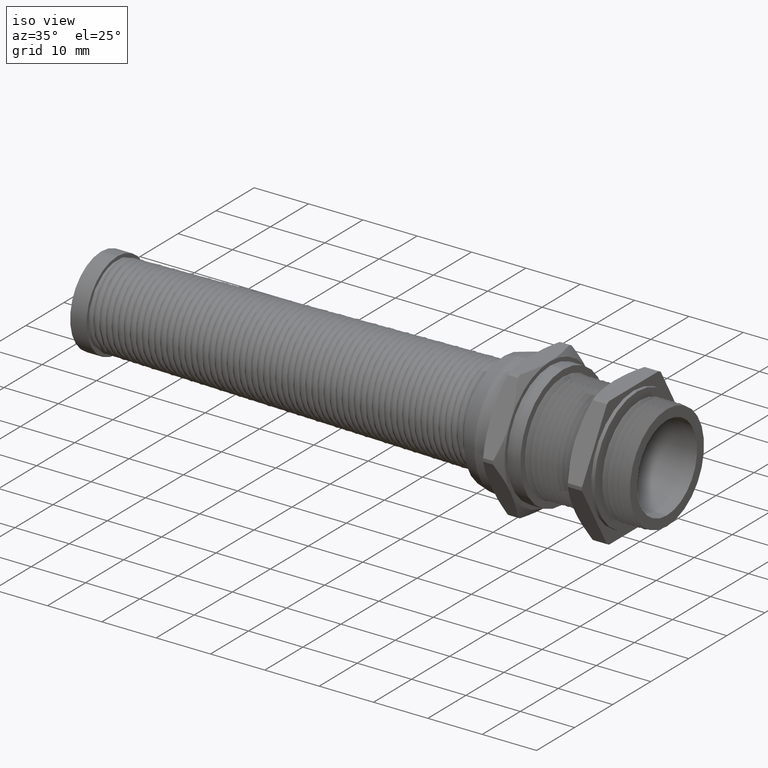
[diagram: clean part render]
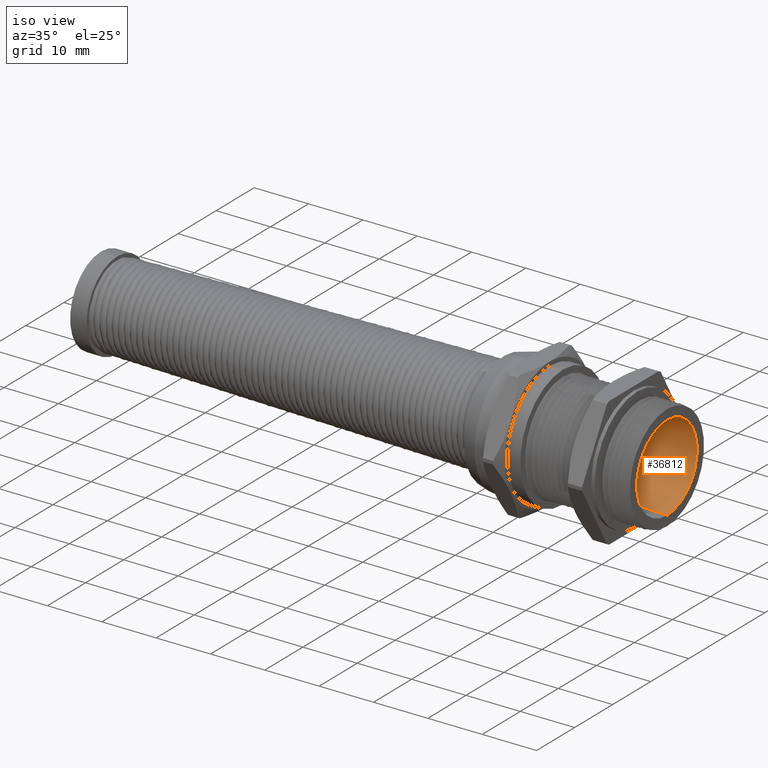
[diagram: tour spotlight — one face highlighted and labeled with its STEP entity id]
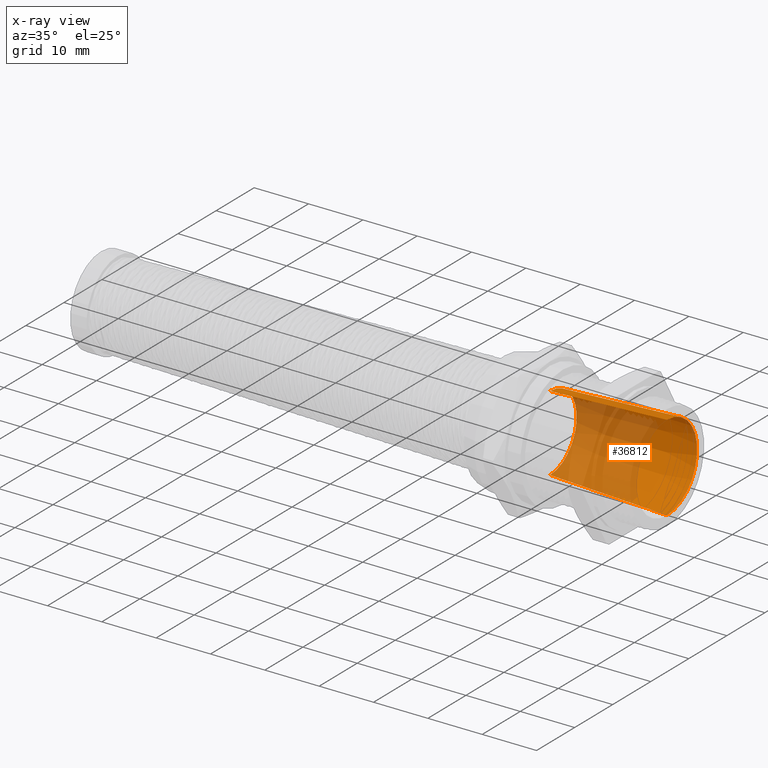
[diagram: x-ray of the same camera — body ghosted, this tour face saturated]
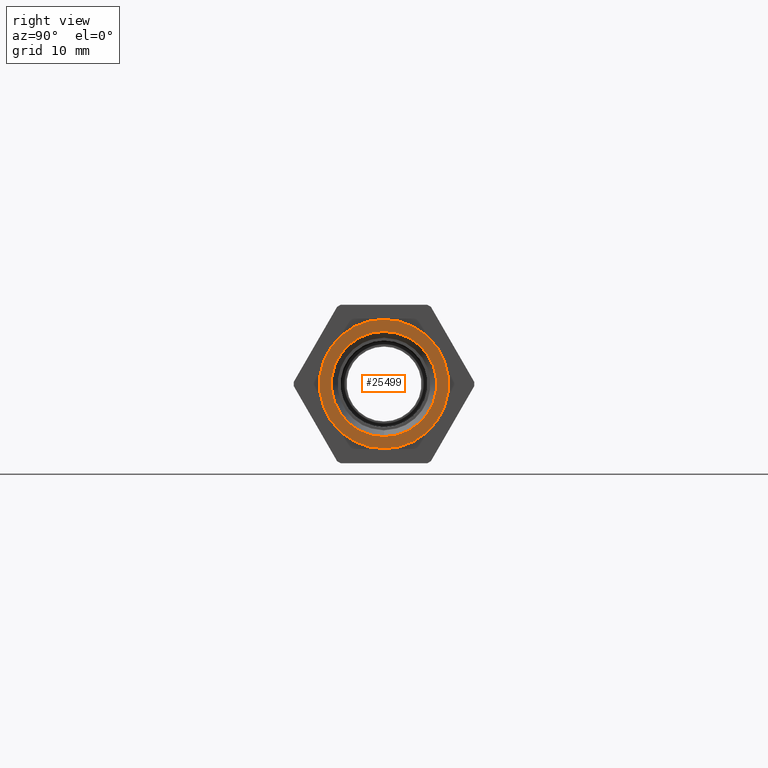
[diagram: tour spotlight — one face highlighted and labeled with its STEP entity id]
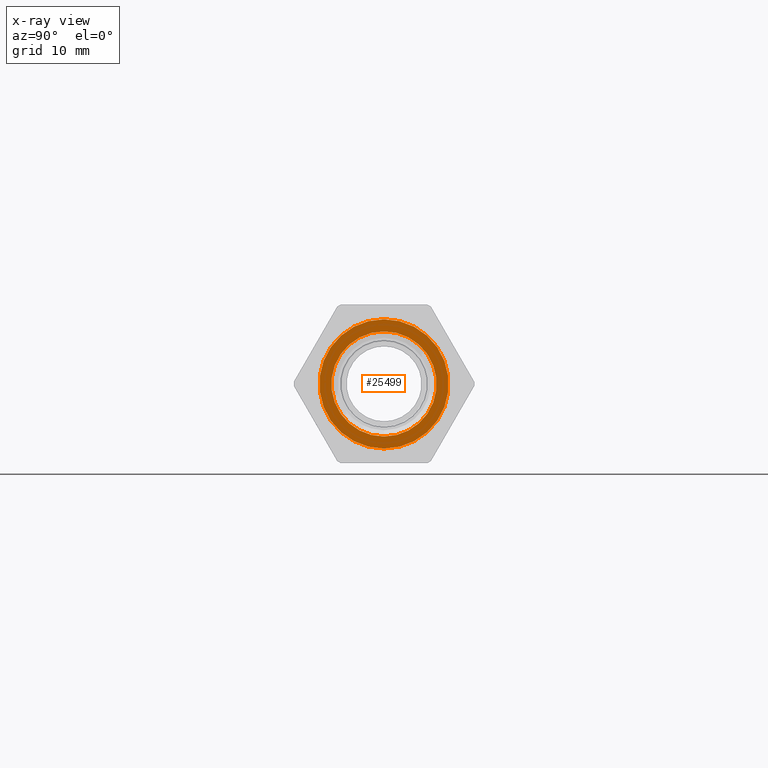
[diagram: x-ray of the same camera — body ghosted, this tour face saturated]
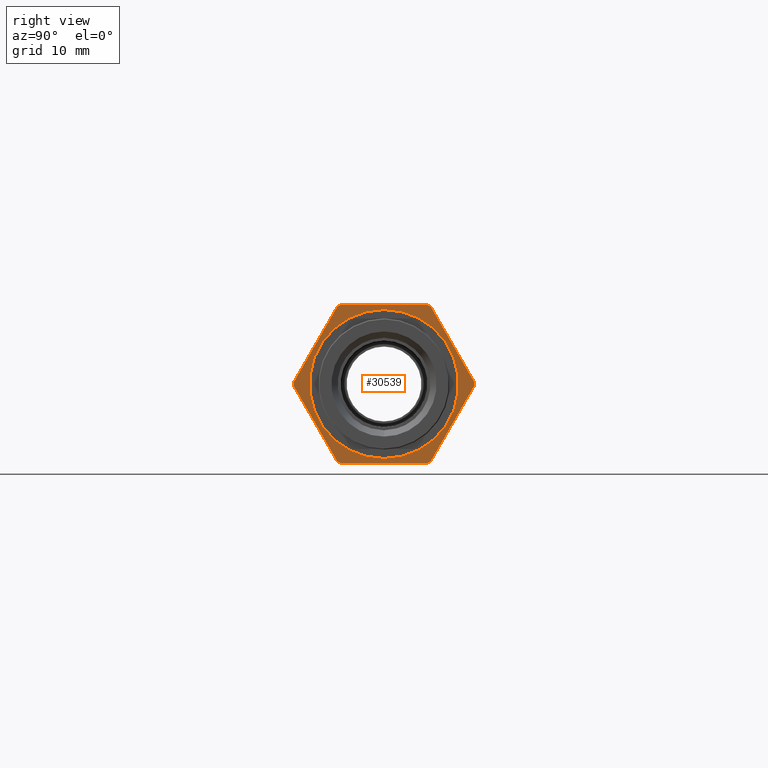
[diagram: tour spotlight — one face highlighted and labeled with its STEP entity id]
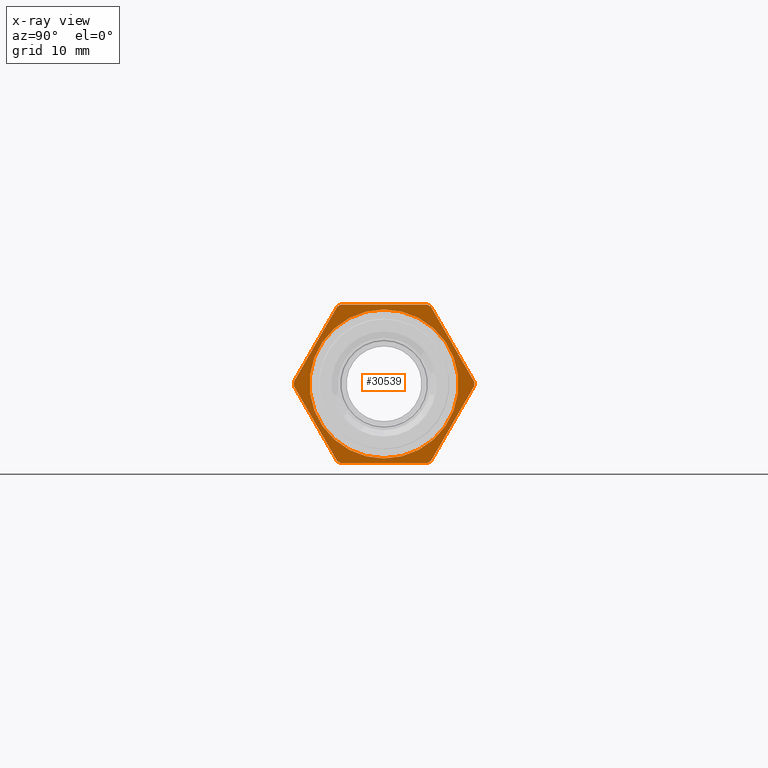
[diagram: x-ray of the same camera — body ghosted, this tour face saturated]
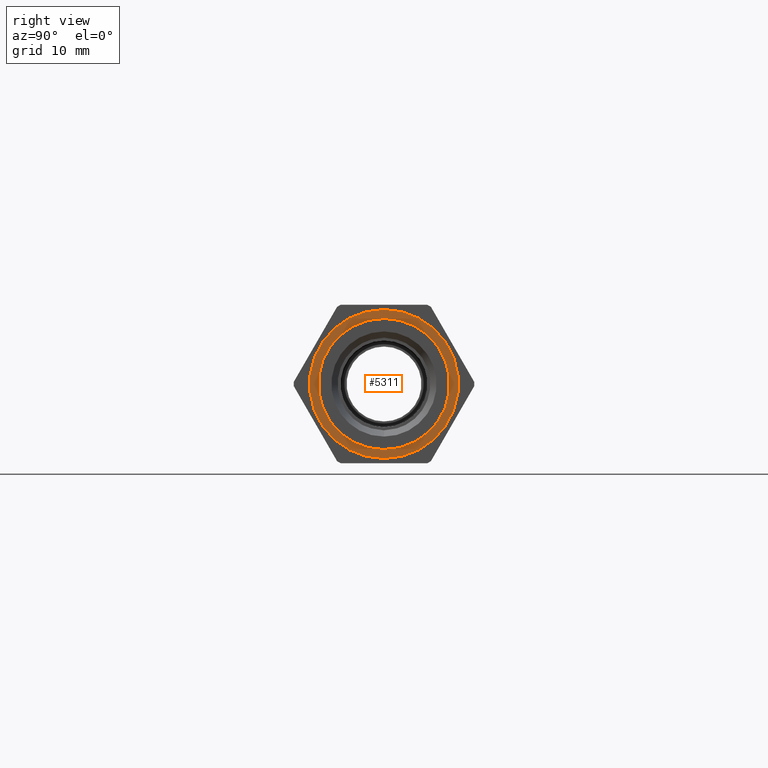
[diagram: tour spotlight — one face highlighted and labeled with its STEP entity id]
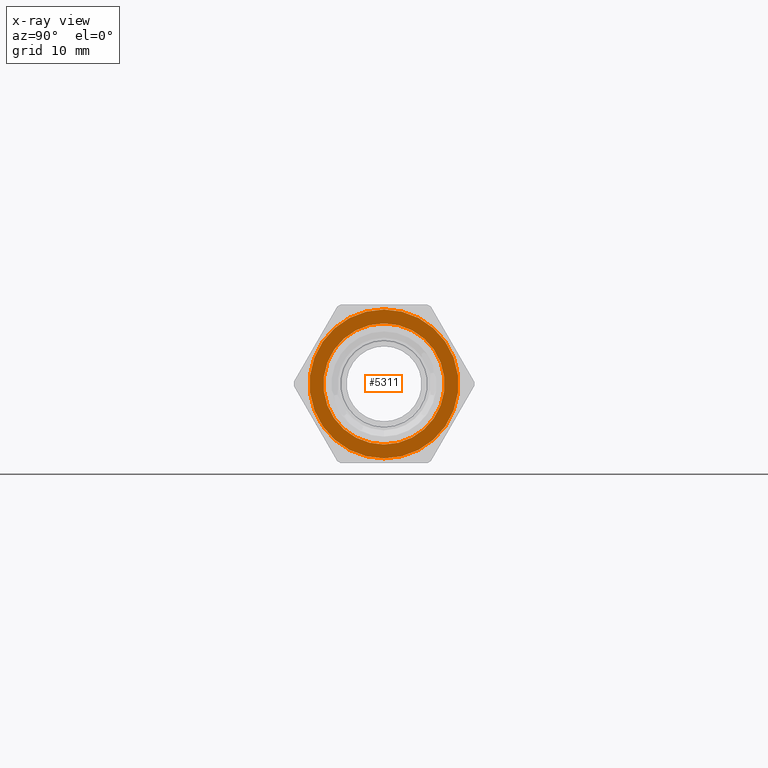
[diagram: x-ray of the same camera — body ghosted, this tour face saturated]
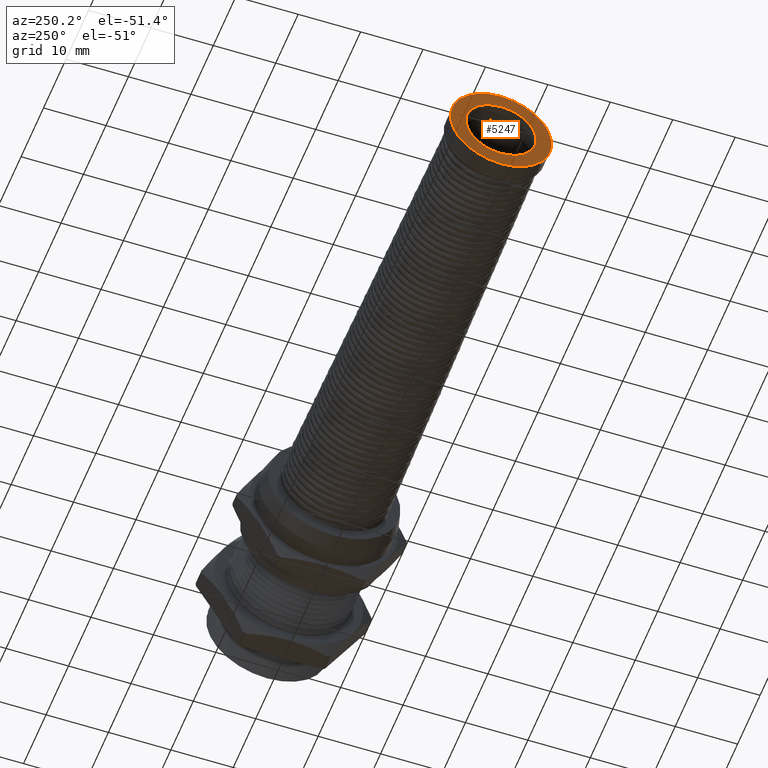
[diagram: tour spotlight — one face highlighted and labeled with its STEP entity id]
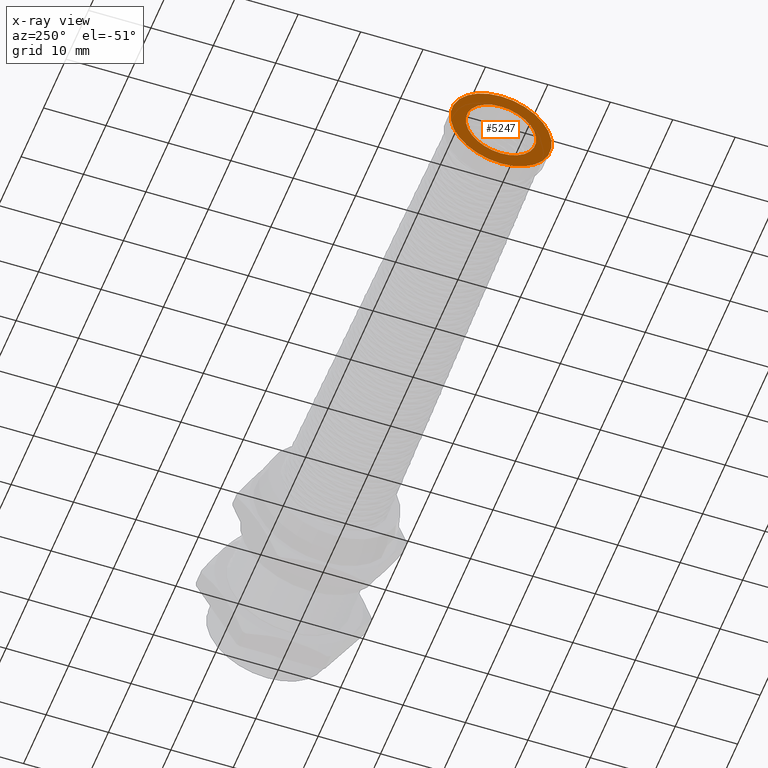
[diagram: x-ray of the same camera — body ghosted, this tour face saturated]
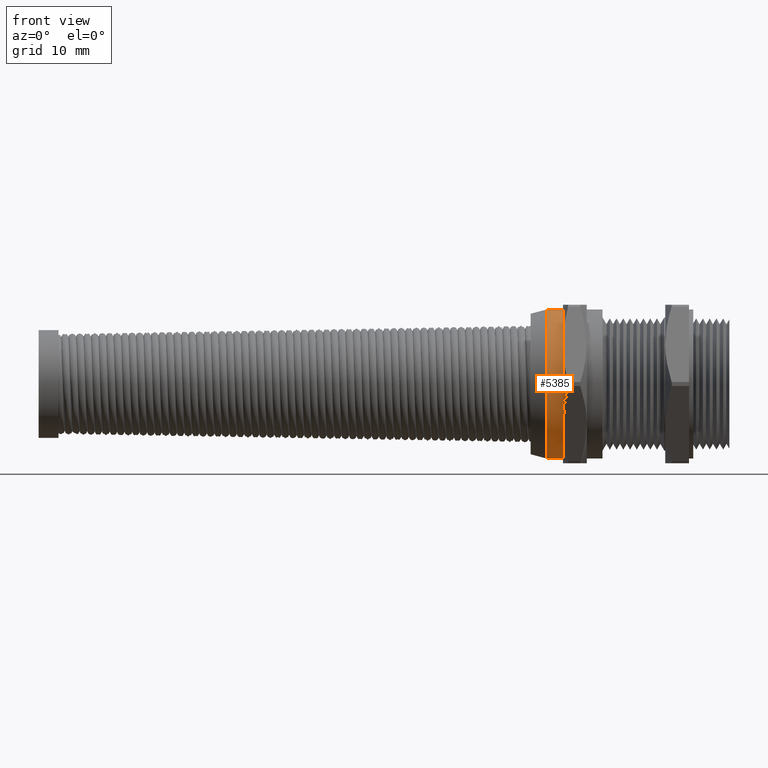
[diagram: tour spotlight — one face highlighted and labeled with its STEP entity id]
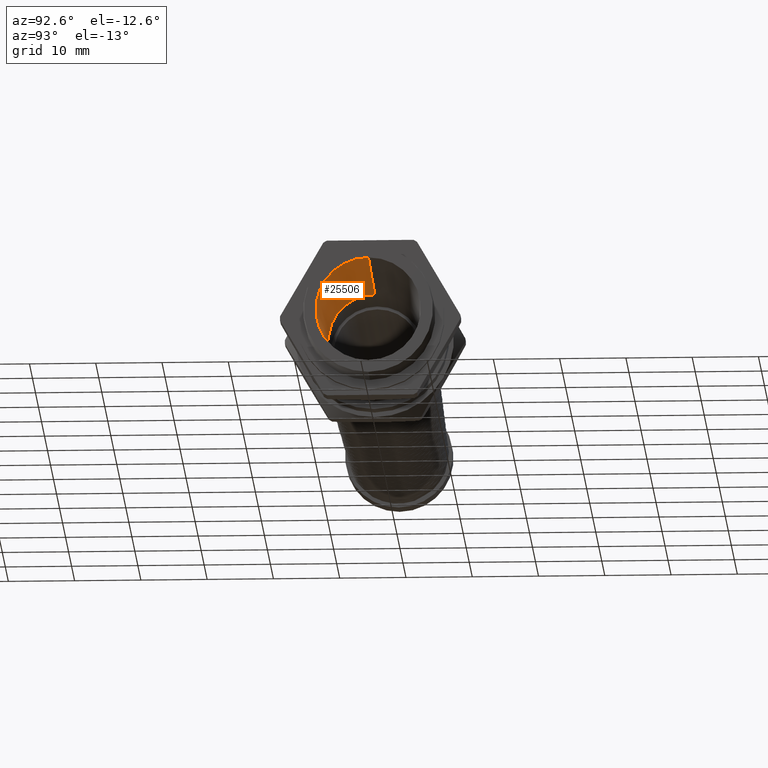
[diagram: tour spotlight — one face highlighted and labeled with its STEP entity id]
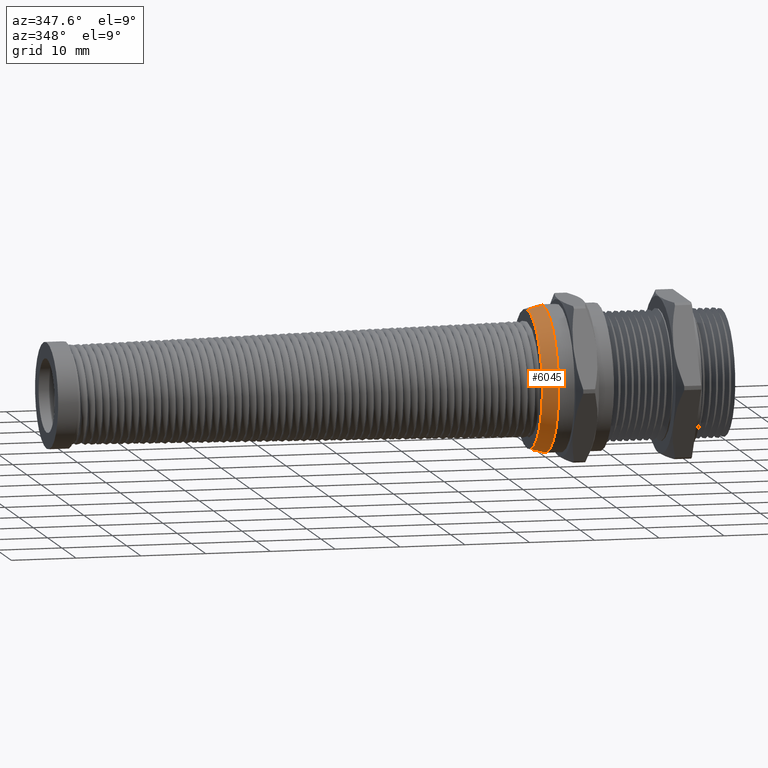
[diagram: tour spotlight — one face highlighted and labeled with its STEP entity id]
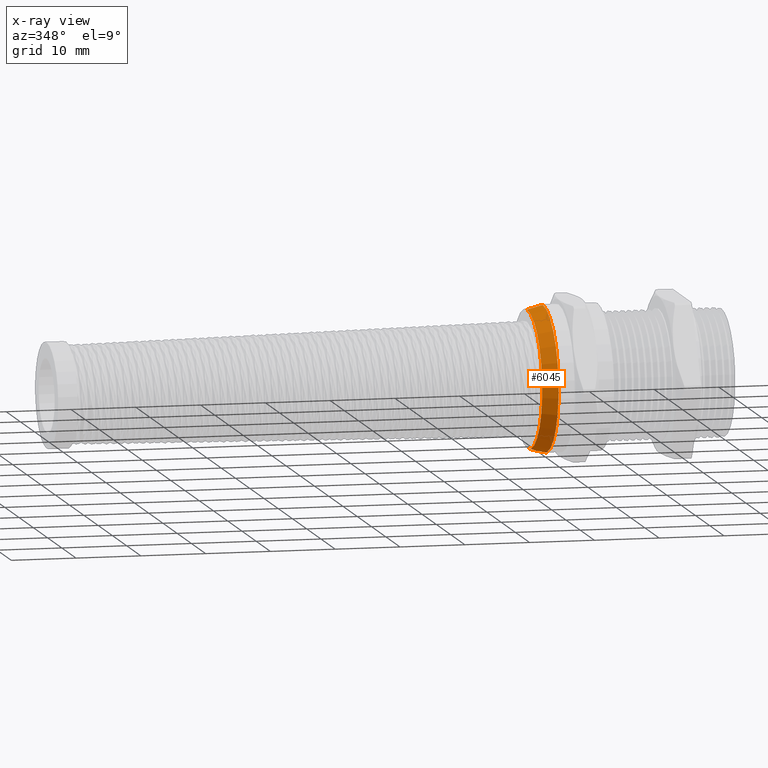
[diagram: x-ray of the same camera — body ghosted, this tour face saturated]
A machine part: a face-by-face anatomy tour. The part has 149 B-rep faces; the first image is the clean iso view, then the 8 largest visible faces are spotlighted one at a time (largest first), each with its STEP entity span.

Face 1 — iso view, entity #36812. An x-ray twin of the same camera follows (body ghosted, this face saturated) — the face is partly hidden behind the body. In plain terms, the highlighted conical surface has half-angle 2.5 deg.
Definition (entity closure, byte-faithful):
#25518 = VERTEX_POINT ( 'NONE', #28061 ) ;
#25538 = EDGE_CURVE ( 'NONE', #25562, #25566, #28103, .T. ) ;
#25553 = VERTEX_POINT ( 'NONE', #28129 ) ;
#25560 = EDGE_CURVE ( 'NONE', #25553, #25566, #28120, .T. ) ;
#25562 = VERTEX_POINT ( 'NONE', #28169 ) ;
#25566 = VERTEX_POINT ( 'NONE', #28168 ) ;
#25568 = EDGE_CURVE ( 'NONE', #25518, #25562, #28167, .T. ) ;
#28061 = CARTESIAN_POINT ( 'NONE',  ( -0.2570000000000000100, 3.594220903563338300E-017, 0.2750000000000000800 ) ) ;
#28099 = DIRECTION ( 'NONE',  ( 0.0000000000000000000, 0.0000000000000000000, 1.000000000000000000 ) ) ;
#28100 = DIRECTION ( 'NONE',  ( -1.000000000000000000, 0.0000000000000000000, 0.0000000000000000000 ) ) ;
#28101 = CARTESIAN_POINT ( 'NONE',  ( 0.5899999999999999700, 0.0000000000000000000, 0.0000000000000000000 ) ) ;
#28102 = AXIS2_PLACEMENT_3D ( 'NONE', #28101, #28100, #28099 ) ;
#28103 = CIRCLE ( 'NONE', #28102, 0.3119808186435099600 ) ;
#28120 = LINE ( 'NONE', #28177, #28176 ) ;
#28129 = CARTESIAN_POINT ( 'NONE',  ( -0.2570000000000000100, 0.0000000000000000000, -0.2750000000000000800 ) ) ;
#28164 = DIRECTION ( 'NONE',  ( 0.9990482215818576900, 5.341834311772747100E-018, 0.04361938736533619400 ) ) ;
#28165 = VECTOR ( 'NONE', #28164, 39.37007874015748100 ) ;
#28166 = CARTESIAN_POINT ( 'NONE',  ( -0.2570000000000000100, 3.367778697655221900E-017, 0.2750000000000000800 ) ) ;
#28167 = LINE ( 'NONE', #28166, #28165 ) ;
#28168 = CARTESIAN_POINT ( 'NONE',  ( 0.5899999999999999700, 0.0000000000000000000, -0.3119808186435099600 ) ) ;
#28169 = CARTESIAN_POINT ( 'NONE',  ( 0.5899999999999999700, 3.820663109471453500E-017, 0.3119808186435099600 ) ) ;
#28175 = DIRECTION ( 'NONE',  ( 0.9990482215818576900, 0.0000000000000000000, -0.04361938736533619400 ) ) ;
#28176 = VECTOR ( 'NONE', #28175, 39.37007874015748100 ) ;
#28177 = CARTESIAN_POINT ( 'NONE',  ( -0.2570000000000000100, 0.0000000000000000000, -0.2750000000000000800 ) ) ;
#28686 = DIRECTION ( 'NONE',  ( 0.0000000000000000000, 0.0000000000000000000, 1.000000000000000000 ) ) ;
#28687 = DIRECTION ( 'NONE',  ( -1.000000000000000000, 0.0000000000000000000, 0.0000000000000000000 ) ) ;
#28688 = CARTESIAN_POINT ( 'NONE',  ( -0.2570000000000000100, 0.0000000000000000000, 0.0000000000000000000 ) ) ;
#28689 = AXIS2_PLACEMENT_3D ( 'NONE', #28688, #28687, #28686 ) ;
#28694 = CIRCLE ( 'NONE', #28689, 0.2750000000000000800 ) ;
#28726 = DIRECTION ( 'NONE',  ( 0.0000000000000000000, 0.0000000000000000000, -1.000000000000000000 ) ) ;
#28727 = DIRECTION ( 'NONE',  ( 1.000000000000000000, 0.0000000000000000000, 0.0000000000000000000 ) ) ;
#28728 = CARTESIAN_POINT ( 'NONE',  ( -0.2570000000000000100, 0.0000000000000000000, 0.0000000000000000000 ) ) ;
#28729 = AXIS2_PLACEMENT_3D ( 'NONE', #28728, #28727, #28726 ) ;
#28731 = CONICAL_SURFACE ( 'NONE', #28729, 0.2750000000000000800, 0.04363323129985843100 ) ;
#28732 = FACE_OUTER_BOUND ( 'NONE', #36811, .T. ) ;
#36791 = ORIENTED_EDGE ( 'NONE', *, *, #25560, .T. ) ;
#36792 = ORIENTED_EDGE ( 'NONE', *, *, #25568, .F. ) ;
#36793 = ORIENTED_EDGE ( 'NONE', *, *, #25538, .F. ) ;
#36801 = EDGE_CURVE ( 'NONE', #25518, #25553, #28694, .T. ) ;
#36805 = ORIENTED_EDGE ( 'NONE', *, *, #36801, .T. ) ;
#36811 = EDGE_LOOP ( 'NONE', ( #36792, #36805, #36791, #36793 ) ) ;
#36812 = ADVANCED_FACE ( 'NONE', ( #28732 ), #28731, .F. ) ;

Face 2 — right view, entity #25499. An x-ray twin of the same camera follows (body ghosted, this face saturated) — the face is partly hidden behind the body. In plain terms, the highlighted planar face has unit normal (-1, 0, 0).
Definition (entity closure, byte-faithful):
#60 = VERTEX_POINT ( 'NONE', #26573 ) ;
#69 = VERTEX_POINT ( 'NONE', #26558 ) ;
#71 = EDGE_CURVE ( 'NONE', #69, #60, #26556, .T. ) ;
#25493 = EDGE_LOOP ( 'NONE', ( #25534, #25535 ) ) ;
#25499 = ADVANCED_FACE ( 'NONE', ( #28042, #28041 ), #28040, .F. ) ;
#25519 = EDGE_LOOP ( 'NONE', ( #25525, #25585 ) ) ;
#25525 = ORIENTED_EDGE ( 'NONE', *, *, #25586, .F. ) ;
#25534 = ORIENTED_EDGE ( 'NONE', *, *, #25561, .T. ) ;
#25535 = ORIENTED_EDGE ( 'NONE', *, *, #25538, .T. ) ;
#25538 = EDGE_CURVE ( 'NONE', #25562, #25566, #28103, .T. ) ;
#25561 = EDGE_CURVE ( 'NONE', #25566, #25562, #28174, .T. ) ;
#25562 = VERTEX_POINT ( 'NONE', #28169 ) ;
#25566 = VERTEX_POINT ( 'NONE', #28168 ) ;
#25585 = ORIENTED_EDGE ( 'NONE', *, *, #71, .F. ) ;
#25586 = EDGE_CURVE ( 'NONE', #60, #69, #28195, .T. ) ;
#26552 = DIRECTION ( 'NONE',  ( 0.0000000000000000000, 0.0000000000000000000, 1.000000000000000000 ) ) ;
#26553 = DIRECTION ( 'NONE',  ( -1.000000000000000000, 0.0000000000000000000, 0.0000000000000000000 ) ) ;
#26554 = CARTESIAN_POINT ( 'NONE',  ( 0.5899999999999999700, 0.0000000000000000000, -2.071885201496258400E-017 ) ) ;
#26555 = AXIS2_PLACEMENT_3D ( 'NONE', #26554, #26553, #26552 ) ;
#26556 = CIRCLE ( 'NONE', #26555, 0.3837188332679145600 ) ;
#26558 = CARTESIAN_POINT ( 'NONE',  ( 0.5899999999999999700, 4.699200409341084600E-017, 0.3837188332679145600 ) ) ;
#26573 = CARTESIAN_POINT ( 'NONE',  ( 0.5899999999999999700, 0.0000000000000000000, -0.3837188332679145600 ) ) ;
#28034 = DIRECTION ( 'NONE',  ( 0.0000000000000000000, 0.0000000000000000000, 1.000000000000000000 ) ) ;
#28035 = DIRECTION ( 'NONE',  ( -1.000000000000000000, 0.0000000000000000000, 0.0000000000000000000 ) ) ;
#28036 = CARTESIAN_POINT ( 'NONE',  ( 0.5899999999999999700, 0.3887153788233951300, 0.0000000000000000000 ) ) ;
#28037 = AXIS2_PLACEMENT_3D ( 'NONE', #28036, #28035, #28034 ) ;
#28040 = PLANE ( 'NONE',  #28037 ) ;
#28041 = FACE_OUTER_BOUND ( 'NONE', #25519, .T. ) ;
#28042 = FACE_BOUND ( 'NONE', #25493, .T. ) ;
#28099 = DIRECTION ( 'NONE',  ( 0.0000000000000000000, 0.0000000000000000000, 1.000000000000000000 ) ) ;
#28100 = DIRECTION ( 'NONE',  ( -1.000000000000000000, 0.0000000000000000000, 0.0000000000000000000 ) ) ;
#28101 = CARTESIAN_POINT ( 'NONE',  ( 0.5899999999999999700, 0.0000000000000000000, 0.0000000000000000000 ) ) ;
#28102 = AXIS2_PLACEMENT_3D ( 'NONE', #28101, #28100, #28099 ) ;
#28103 = CIRCLE ( 'NONE', #28102, 0.3119808186435099600 ) ;
#28168 = CARTESIAN_POINT ( 'NONE',  ( 0.5899999999999999700, 0.0000000000000000000, -0.3119808186435099600 ) ) ;
#28169 = CARTESIAN_POINT ( 'NONE',  ( 0.5899999999999999700, 3.820663109471453500E-017, 0.3119808186435099600 ) ) ;
#28170 = DIRECTION ( 'NONE',  ( 0.0000000000000000000, 0.0000000000000000000, 1.000000000000000000 ) ) ;
#28171 = DIRECTION ( 'NONE',  ( -1.000000000000000000, 0.0000000000000000000, 0.0000000000000000000 ) ) ;
#28172 = CARTESIAN_POINT ( 'NONE',  ( 0.5899999999999999700, 0.0000000000000000000, 0.0000000000000000000 ) ) ;
#28173 = AXIS2_PLACEMENT_3D ( 'NONE', #28172, #28171, #28170 ) ;
#28174 = CIRCLE ( 'NONE', #28173, 0.3119808186435099600 ) ;
#28191 = DIRECTION ( 'NONE',  ( 0.0000000000000000000, 0.0000000000000000000, 1.000000000000000000 ) ) ;
#28192 = DIRECTION ( 'NONE',  ( -1.000000000000000000, 0.0000000000000000000, 0.0000000000000000000 ) ) ;
#28193 = CARTESIAN_POINT ( 'NONE',  ( 0.5899999999999999700, 0.0000000000000000000, -2.071885201496258400E-017 ) ) ;
#28194 = AXIS2_PLACEMENT_3D ( 'NONE', #28193, #28192, #28191 ) ;
#28195 = CIRCLE ( 'NONE', #28194, 0.3837188332679145600 ) ;

Face 3 — right view, entity #30539. An x-ray twin of the same camera follows (body ghosted, this face saturated) — the face is partly hidden behind the body. In plain terms, the highlighted planar face has unit normal (-1, 0, 0).
Definition (entity closure, byte-faithful):
#25481 = VERTEX_POINT ( 'NONE', #28002 ) ;
#25482 = ORIENTED_EDGE ( 'NONE', *, *, #25494, .F. ) ;
#25483 = VERTEX_POINT ( 'NONE', #28001 ) ;
#25484 = EDGE_LOOP ( 'NONE', ( #25486, #25504 ) ) ;
#25486 = ORIENTED_EDGE ( 'NONE', *, *, #25489, .F. ) ;
#25487 = VERTEX_POINT ( 'NONE', #28000 ) ;
#25489 = EDGE_CURVE ( 'NONE', #33267, #28070, #27992, .T. ) ;
#25490 = EDGE_CURVE ( 'NONE', #25527, #25498, #27986, .T. ) ;
#25491 = VERTEX_POINT ( 'NONE', #28055 ) ;
#25494 = EDGE_CURVE ( 'NONE', #25481, #25537, #28053, .T. ) ;
#25496 = VERTEX_POINT ( 'NONE', #28048 ) ;
#25497 = EDGE_CURVE ( 'NONE', #25481, #25496, #28047, .T. ) ;
#25498 = VERTEX_POINT ( 'NONE', #28043 ) ;
#25503 = ORIENTED_EDGE ( 'NONE', *, *, #25497, .T. ) ;
#25504 = ORIENTED_EDGE ( 'NONE', *, *, #33265, .F. ) ;
#25505 = VERTEX_POINT ( 'NONE', #28027 ) ;
#25507 = ORIENTED_EDGE ( 'NONE', *, *, #25514, .T. ) ;
#25508 = ORIENTED_EDGE ( 'NONE', *, *, #25533, .T. ) ;
#25509 = ORIENTED_EDGE ( 'NONE', *, *, #25512, .F. ) ;
#25510 = ORIENTED_EDGE ( 'NONE', *, *, #25511, .F. ) ;
#25511 = EDGE_CURVE ( 'NONE', #25483, #25498, #28024, .T. ) ;
#25512 = EDGE_CURVE ( 'NONE', #29668, #25530, #28082, .T. ) ;
#25514 = EDGE_CURVE ( 'NONE', #25483, #25537, #28076, .T. ) ;
#25517 = EDGE_CURVE ( 'NONE', #25505, #25496, #28066, .T. ) ;
#25521 = ORIENTED_EDGE ( 'NONE', *, *, #25517, .F. ) ;
#25527 = VERTEX_POINT ( 'NONE', #28119 ) ;
#25528 = ORIENTED_EDGE ( 'NONE', *, *, #25490, .T. ) ;
#25529 = ORIENTED_EDGE ( 'NONE', *, *, #25531, .F. ) ;
#25530 = VERTEX_POINT ( 'NONE', #28118 ) ;
#25531 = EDGE_CURVE ( 'NONE', #25527, #25487, #28117, .T. ) ;
#25532 = ORIENTED_EDGE ( 'NONE', *, *, #25536, .T. ) ;
#25533 = EDGE_CURVE ( 'NONE', #25491, #25487, #28112, .T. ) ;
#25536 = EDGE_CURVE ( 'NONE', #25505, #25530, #28108, .T. ) ;
#25537 = VERTEX_POINT ( 'NONE', #28104 ) ;
#26583 = EDGE_CURVE ( 'NONE', #25491, #26947, #28235, .T. ) ;
#26680 = ORIENTED_EDGE ( 'NONE', *, *, #26583, .F. ) ;
#26738 = VECTOR ( 'NONE', #27468, 39.37007874015748100 ) ;
#26947 = VERTEX_POINT ( 'NONE', #28224 ) ;
#27468 = DIRECTION ( 'NONE',  ( 0.0000000000000000000, 1.000000000000000000, 0.0000000000000000000 ) ) ;
#27985 = CARTESIAN_POINT ( 'NONE',  ( 0.3499999999999999800, -0.2572579250479952700, -0.4699999999999999200 ) ) ;
#27986 = LINE ( 'NONE', #27985, #26738 ) ;
#27988 = DIRECTION ( 'NONE',  ( 0.0000000000000000000, 0.0000000000000000000, 1.000000000000000000 ) ) ;
#27989 = DIRECTION ( 'NONE',  ( 1.000000000000000000, 0.0000000000000000000, 0.0000000000000000000 ) ) ;
#27990 = CARTESIAN_POINT ( 'NONE',  ( 0.3499999999999999800, 0.0000000000000000000, 0.0000000000000000000 ) ) ;
#27991 = AXIS2_PLACEMENT_3D ( 'NONE', #27990, #27989, #27988 ) ;
#27992 = CIRCLE ( 'NONE', #27991, 0.4420349999999999600 ) ;
#28000 = CARTESIAN_POINT ( 'NONE',  ( 0.3499999999999998100, -0.2784029772546883200, -0.4577918984164370800 ) ) ;
#28001 = CARTESIAN_POINT ( 'NONE',  ( 0.3499999999999999800, 0.2784029772546883800, -0.4577918984164368600 ) ) ;
#28002 = CARTESIAN_POINT ( 'NONE',  ( 0.3499999999999999800, 0.5356609023026838200, 0.01220810158356300200 ) ) ;
#28024 = CIRCLE ( 'NONE', #28086, 0.5357999999999999400 ) ;
#28027 = CARTESIAN_POINT ( 'NONE',  ( 0.3499999999999999800, 0.2572579250479953300, 0.4699999999999998600 ) ) ;
#28043 = CARTESIAN_POINT ( 'NONE',  ( 0.3499999999999998100, 0.2572579250479952700, -0.4699999999999999700 ) ) ;
#28044 = DIRECTION ( 'NONE',  ( 0.0000000000000000000, -0.5000000000000001100, 0.8660254037844384900 ) ) ;
#28045 = VECTOR ( 'NONE', #28044, 39.37007874015748900 ) ;
#28046 = CARTESIAN_POINT ( 'NONE',  ( 0.3499999999999999800, 0.5356609023026838200, 0.01220810158356303400 ) ) ;
#28047 = LINE ( 'NONE', #28046, #28045 ) ;
#28048 = CARTESIAN_POINT ( 'NONE',  ( 0.3499999999999998100, 0.2784029772546883200, 0.4577918984164370800 ) ) ;
#28049 = DIRECTION ( 'NONE',  ( 0.0000000000000000000, 0.0000000000000000000, 1.000000000000000000 ) ) ;
#28050 = DIRECTION ( 'NONE',  ( -1.000000000000000000, 0.0000000000000000000, 0.0000000000000000000 ) ) ;
#28051 = CARTESIAN_POINT ( 'NONE',  ( 0.3499999999999998100, 0.0000000000000000000, 0.0000000000000000000 ) ) ;
#28052 = AXIS2_PLACEMENT_3D ( 'NONE', #28051, #28050, #28049 ) ;
#28053 = CIRCLE ( 'NONE', #28052, 0.5357999999999999400 ) ;
#28055 = CARTESIAN_POINT ( 'NONE',  ( 0.3499999999999999800, -0.5356609023026838200, -0.01220810158356305600 ) ) ;
#28062 = DIRECTION ( 'NONE',  ( 0.0000000000000000000, 0.0000000000000000000, 1.000000000000000000 ) ) ;
#28063 = DIRECTION ( 'NONE',  ( -1.000000000000000000, 0.0000000000000000000, 0.0000000000000000000 ) ) ;
#28064 = CARTESIAN_POINT ( 'NONE',  ( 0.3499999999999998100, 0.0000000000000000000, 0.0000000000000000000 ) ) ;
#28065 = AXIS2_PLACEMENT_3D ( 'NONE', #28064, #28063, #28062 ) ;
#28066 = CIRCLE ( 'NONE', #28065, 0.5357999999999999400 ) ;
#28070 = VERTEX_POINT ( 'NONE', #28274 ) ;
#28073 = DIRECTION ( 'NONE',  ( 0.0000000000000000000, 0.5000000000000000000, 0.8660254037844386000 ) ) ;
#28074 = VECTOR ( 'NONE', #28073, 39.37007874015748900 ) ;
#28075 = CARTESIAN_POINT ( 'NONE',  ( 0.3499999999999999800, 0.2784029772546883800, -0.4577918984164369200 ) ) ;
#28076 = LINE ( 'NONE', #28075, #28074 ) ;
#28078 = DIRECTION ( 'NONE',  ( 0.0000000000000000000, 0.0000000000000000000, 1.000000000000000000 ) ) ;
#28079 = DIRECTION ( 'NONE',  ( -1.000000000000000000, 0.0000000000000000000, 0.0000000000000000000 ) ) ;
#28080 = CARTESIAN_POINT ( 'NONE',  ( 0.3499999999999998100, 0.0000000000000000000, 0.0000000000000000000 ) ) ;
#28081 = AXIS2_PLACEMENT_3D ( 'NONE', #28080, #28079, #28078 ) ;
#28082 = CIRCLE ( 'NONE', #28081, 0.5357999999999999400 ) ;
#28083 = DIRECTION ( 'NONE',  ( 0.0000000000000000000, 0.0000000000000000000, 1.000000000000000000 ) ) ;
#28084 = DIRECTION ( 'NONE',  ( -1.000000000000000000, 0.0000000000000000000, 0.0000000000000000000 ) ) ;
#28085 = CARTESIAN_POINT ( 'NONE',  ( 0.3499999999999998100, 0.0000000000000000000, 0.0000000000000000000 ) ) ;
#28086 = AXIS2_PLACEMENT_3D ( 'NONE', #28085, #28084, #28083 ) ;
#28104 = CARTESIAN_POINT ( 'NONE',  ( 0.3499999999999998100, 0.5356609023026838200, -0.01220810158356293500 ) ) ;
#28105 = DIRECTION ( 'NONE',  ( 0.0000000000000000000, -1.000000000000000000, 0.0000000000000000000 ) ) ;
#28106 = VECTOR ( 'NONE', #28105, 39.37007874015748100 ) ;
#28107 = CARTESIAN_POINT ( 'NONE',  ( 0.3499999999999999800, 0.2572579250479953800, 0.4699999999999999200 ) ) ;
#28108 = LINE ( 'NONE', #28107, #28106 ) ;
#28109 = DIRECTION ( 'NONE',  ( 0.0000000000000000000, 0.5000000000000001100, -0.8660254037844384900 ) ) ;
#28110 = VECTOR ( 'NONE', #28109, 39.37007874015748900 ) ;
#28111 = CARTESIAN_POINT ( 'NONE',  ( 0.3499999999999999800, -0.5356609023026838200, -0.01220810158356306800 ) ) ;
#28112 = LINE ( 'NONE', #28111, #28110 ) ;
#28113 = DIRECTION ( 'NONE',  ( 0.0000000000000000000, 0.0000000000000000000, 1.000000000000000000 ) ) ;
#28114 = DIRECTION ( 'NONE',  ( -1.000000000000000000, 0.0000000000000000000, 0.0000000000000000000 ) ) ;
#28115 = CARTESIAN_POINT ( 'NONE',  ( 0.3499999999999998100, 0.0000000000000000000, 0.0000000000000000000 ) ) ;
#28116 = AXIS2_PLACEMENT_3D ( 'NONE', #28115, #28114, #28113 ) ;
#28117 = CIRCLE ( 'NONE', #28116, 0.5357999999999999400 ) ;
#28118 = CARTESIAN_POINT ( 'NONE',  ( 0.3499999999999998100, -0.2572579250479953800, 0.4699999999999999200 ) ) ;
#28119 = CARTESIAN_POINT ( 'NONE',  ( 0.3499999999999999800, -0.2572579250479953800, -0.4699999999999999200 ) ) ;
#28224 = CARTESIAN_POINT ( 'NONE',  ( 0.3499999999999998100, -0.5356609023026838200, 0.01220810158356303400 ) ) ;
#28231 = DIRECTION ( 'NONE',  ( 0.0000000000000000000, 0.0000000000000000000, 1.000000000000000000 ) ) ;
#28232 = DIRECTION ( 'NONE',  ( -1.000000000000000000, 0.0000000000000000000, 0.0000000000000000000 ) ) ;
#28233 = CARTESIAN_POINT ( 'NONE',  ( 0.3499999999999998100, 0.0000000000000000000, 0.0000000000000000000 ) ) ;
#28234 = AXIS2_PLACEMENT_3D ( 'NONE', #28233, #28232, #28231 ) ;
#28235 = CIRCLE ( 'NONE', #28234, 0.5357999999999999400 ) ;
#28274 = CARTESIAN_POINT ( 'NONE',  ( 0.3499999999999999800, 5.413367478611002500E-017, -0.4420349999999999600 ) ) ;
#28285 = DIRECTION ( 'NONE',  ( 0.0000000000000000000, -0.5000000000000001100, -0.8660254037844384900 ) ) ;
#28286 = VECTOR ( 'NONE', #28285, 39.37007874015748900 ) ;
#28287 = CARTESIAN_POINT ( 'NONE',  ( 0.3499999999999999800, -0.2784029772546883800, 0.4577918984164369200 ) ) ;
#28288 = LINE ( 'NONE', #28287, #28286 ) ;
#28325 = DIRECTION ( 'NONE',  ( 0.0000000000000000000, 0.0000000000000000000, 1.000000000000000000 ) ) ;
#28326 = DIRECTION ( 'NONE',  ( -1.000000000000000000, 0.0000000000000000000, 0.0000000000000000000 ) ) ;
#28327 = CARTESIAN_POINT ( 'NONE',  ( 0.3499999999999999800, 0.5357999999999999400, 0.0000000000000000000 ) ) ;
#28328 = AXIS2_PLACEMENT_3D ( 'NONE', #28327, #28326, #28325 ) ;
#28329 = PLANE ( 'NONE',  #28328 ) ;
#28330 = FACE_BOUND ( 'NONE', #25484, .T. ) ;
#28331 = FACE_OUTER_BOUND ( 'NONE', #30451, .T. ) ;
#28343 = CARTESIAN_POINT ( 'NONE',  ( 0.3499999999999999800, -0.2784029772546883800, 0.4577918984164369200 ) ) ;
#28390 = CARTESIAN_POINT ( 'NONE',  ( 0.3499999999999999800, 0.0000000000000000000, 0.4420349999999999600 ) ) ;
#28391 = DIRECTION ( 'NONE',  ( 0.0000000000000000000, 0.0000000000000000000, 1.000000000000000000 ) ) ;
#28392 = DIRECTION ( 'NONE',  ( 1.000000000000000000, 0.0000000000000000000, 0.0000000000000000000 ) ) ;
#28393 = CARTESIAN_POINT ( 'NONE',  ( 0.3499999999999999800, 0.0000000000000000000, 0.0000000000000000000 ) ) ;
#28394 = AXIS2_PLACEMENT_3D ( 'NONE', #28393, #28392, #28391 ) ;
#28395 = CIRCLE ( 'NONE', #28394, 0.4420349999999999600 ) ;
#29603 = EDGE_CURVE ( 'NONE', #29668, #26947, #28288, .T. ) ;
#29668 = VERTEX_POINT ( 'NONE', #28343 ) ;
#30040 = ORIENTED_EDGE ( 'NONE', *, *, #29603, .T. ) ;
#30451 = EDGE_LOOP ( 'NONE', ( #30040, #26680, #25508, #25529, #25528, #25510, #25507, #25482, #25503, #25521, #25532, #25509 ) ) ;
#30539 = ADVANCED_FACE ( 'NONE', ( #28331, #28330 ), #28329, .F. ) ;
#33265 = EDGE_CURVE ( 'NONE', #28070, #33267, #28395, .T. ) ;
#33267 = VERTEX_POINT ( 'NONE', #28390 ) ;

Face 4 — right view, entity #5311. An x-ray twin of the same camera follows (body ghosted, this face saturated) — the face is partly hidden behind the body. In plain terms, the highlighted planar face has unit normal (1, 0, 0).
Definition (entity closure, byte-faithful):
#5296 = EDGE_CURVE ( 'NONE', #6450, #29248, #27064, .T. ) ;
#5311 = ADVANCED_FACE ( 'NONE', ( #27050, #27044 ), #27109, .T. ) ;
#6450 = VERTEX_POINT ( 'NONE', #27758 ) ;
#6467 = EDGE_CURVE ( 'NONE', #29248, #6450, #27757, .T. ) ;
#6481 = EDGE_CURVE ( 'NONE', #28896, #28864, #27738, .T. ) ;
#6482 = ORIENTED_EDGE ( 'NONE', *, *, #28904, .T. ) ;
#6484 = EDGE_LOOP ( 'NONE', ( #6486, #6482 ) ) ;
#6486 = ORIENTED_EDGE ( 'NONE', *, *, #6481, .T. ) ;
#6503 = ORIENTED_EDGE ( 'NONE', *, *, #6467, .T. ) ;
#6510 = ORIENTED_EDGE ( 'NONE', *, *, #5296, .T. ) ;
#6512 = EDGE_LOOP ( 'NONE', ( #6510, #6503 ) ) ;
#27044 = FACE_OUTER_BOUND ( 'NONE', #6484, .T. ) ;
#27050 = FACE_BOUND ( 'NONE', #6512, .T. ) ;
#27060 = DIRECTION ( 'NONE',  ( 0.0000000000000000000, 0.0000000000000000000, -1.000000000000000000 ) ) ;
#27061 = DIRECTION ( 'NONE',  ( -1.000000000000000000, 0.0000000000000000000, 0.0000000000000000000 ) ) ;
#27062 = CARTESIAN_POINT ( 'NONE',  ( 0.3749999999999999400, 0.0000000000000000000, 0.0000000000000000000 ) ) ;
#27063 = AXIS2_PLACEMENT_3D ( 'NONE', #27062, #27061, #27060 ) ;
#27064 = CIRCLE ( 'NONE', #27063, 0.3592410579609829900 ) ;
#27105 = DIRECTION ( 'NONE',  ( 0.0000000000000000000, 0.0000000000000000000, -1.000000000000000000 ) ) ;
#27106 = DIRECTION ( 'NONE',  ( 1.000000000000000000, 0.0000000000000000000, 0.0000000000000000000 ) ) ;
#27107 = CARTESIAN_POINT ( 'NONE',  ( 0.3749999999999999400, 0.0000000000000000000, 0.0000000000000000000 ) ) ;
#27108 = AXIS2_PLACEMENT_3D ( 'NONE', #27107, #27106, #27105 ) ;
#27109 = PLANE ( 'NONE',  #27108 ) ;
#27735 = DIRECTION ( 'NONE',  ( 0.0000000000000000000, 0.0000000000000000000, -1.000000000000000000 ) ) ;
#27736 = DIRECTION ( 'NONE',  ( 1.000000000000000000, 0.0000000000000000000, 0.0000000000000000000 ) ) ;
#27737 = AXIS2_PLACEMENT_3D ( 'NONE', #27743, #27736, #27735 ) ;
#27738 = CIRCLE ( 'NONE', #27737, 0.4420349999999999600 ) ;
#27743 = CARTESIAN_POINT ( 'NONE',  ( 0.3749999999999999400, 0.0000000000000000000, 0.0000000000000000000 ) ) ;
#27753 = DIRECTION ( 'NONE',  ( 0.0000000000000000000, 0.0000000000000000000, -1.000000000000000000 ) ) ;
#27754 = DIRECTION ( 'NONE',  ( -1.000000000000000000, 0.0000000000000000000, 0.0000000000000000000 ) ) ;
#27755 = CARTESIAN_POINT ( 'NONE',  ( 0.3749999999999999400, 0.0000000000000000000, 0.0000000000000000000 ) ) ;
#27756 = AXIS2_PLACEMENT_3D ( 'NONE', #27755, #27754, #27753 ) ;
#27757 = CIRCLE ( 'NONE', #27756, 0.3592410579609829900 ) ;
#27758 = CARTESIAN_POINT ( 'NONE',  ( 0.3749999999999999400, 0.0000000000000000000, -0.3592410579609829900 ) ) ;
#28252 = DIRECTION ( 'NONE',  ( 0.0000000000000000000, 0.0000000000000000000, -1.000000000000000000 ) ) ;
#28253 = DIRECTION ( 'NONE',  ( 1.000000000000000000, 0.0000000000000000000, 0.0000000000000000000 ) ) ;
#28254 = CARTESIAN_POINT ( 'NONE',  ( 0.3749999999999999400, 0.0000000000000000000, 0.0000000000000000000 ) ) ;
#28255 = AXIS2_PLACEMENT_3D ( 'NONE', #28254, #28253, #28252 ) ;
#28256 = CIRCLE ( 'NONE', #28255, 0.4420349999999999600 ) ;
#28257 = CARTESIAN_POINT ( 'NONE',  ( 0.3749999999999999400, 0.0000000000000000000, 0.4420349999999999600 ) ) ;
#28259 = CARTESIAN_POINT ( 'NONE',  ( 0.3749999999999999400, 5.413367478611002500E-017, -0.4420349999999999600 ) ) ;
#28304 = CARTESIAN_POINT ( 'NONE',  ( 0.3749999999999999400, 4.581768625549627300E-017, 0.3592410579609829900 ) ) ;
#28864 = VERTEX_POINT ( 'NONE', #28259 ) ;
#28896 = VERTEX_POINT ( 'NONE', #28257 ) ;
#28904 = EDGE_CURVE ( 'NONE', #28864, #28896, #28256, .T. ) ;
#29248 = VERTEX_POINT ( 'NONE', #28304 ) ;

Face 5 — auxiliary view, entity #5247. An x-ray twin of the same camera follows (body ghosted, this face saturated) — the face is partly hidden behind the body. In plain terms, the highlighted planar face has unit normal (-1, 0, 0).
Definition (entity closure, byte-faithful):
#50 = EDGE_CURVE ( 'NONE', #3947, #3946, #26537, .T. ) ;
#2833 = DIRECTION ( 'NONE',  ( 0.0000000000000000000, 0.0000000000000000000, 1.000000000000000000 ) ) ;
#2834 = DIRECTION ( 'NONE',  ( -1.000000000000000000, 0.0000000000000000000, 0.0000000000000000000 ) ) ;
#2835 = CARTESIAN_POINT ( 'NONE',  ( -3.509999999999999800, 0.0000000000000000000, 0.0000000000000000000 ) ) ;
#2836 = AXIS2_PLACEMENT_3D ( 'NONE', #2835, #2834, #2833 ) ;
#2837 = CIRCLE ( 'NONE', #2836, 0.2222650000000000200 ) ;
#2839 = CARTESIAN_POINT ( 'NONE',  ( -3.509999999999999800, 2.721961208124864900E-017, 0.2222650000000000200 ) ) ;
#2840 = CARTESIAN_POINT ( 'NONE',  ( -3.509999999999999800, 0.0000000000000000000, -0.2222650000000000200 ) ) ;
#3946 = VERTEX_POINT ( 'NONE', #2840 ) ;
#3947 = VERTEX_POINT ( 'NONE', #2839 ) ;
#3949 = EDGE_CURVE ( 'NONE', #3946, #3947, #2837, .T. ) ;
#5235 = EDGE_LOOP ( 'NONE', ( #30727, #29311 ) ) ;
#5244 = ORIENTED_EDGE ( 'NONE', *, *, #36808, .T. ) ;
#5247 = ADVANCED_FACE ( 'NONE', ( #26962, #26961 ), #26960, .T. ) ;
#5252 = EDGE_LOOP ( 'NONE', ( #5253, #5244 ) ) ;
#5253 = ORIENTED_EDGE ( 'NONE', *, *, #5254, .T. ) ;
#5254 = EDGE_CURVE ( 'NONE', #36788, #36789, #26948, .T. ) ;
#26533 = DIRECTION ( 'NONE',  ( 0.0000000000000000000, 0.0000000000000000000, 1.000000000000000000 ) ) ;
#26534 = DIRECTION ( 'NONE',  ( -1.000000000000000000, 0.0000000000000000000, 0.0000000000000000000 ) ) ;
#26535 = CARTESIAN_POINT ( 'NONE',  ( -3.509999999999999800, 0.0000000000000000000, 0.0000000000000000000 ) ) ;
#26536 = AXIS2_PLACEMENT_3D ( 'NONE', #26535, #26534, #26533 ) ;
#26537 = CIRCLE ( 'NONE', #26536, 0.2222650000000000200 ) ;
#26944 = DIRECTION ( 'NONE',  ( 0.0000000000000000000, 0.0000000000000000000, 1.000000000000000000 ) ) ;
#26945 = DIRECTION ( 'NONE',  ( -1.000000000000000000, 0.0000000000000000000, 0.0000000000000000000 ) ) ;
#26946 = AXIS2_PLACEMENT_3D ( 'NONE', #26953, #26945, #26944 ) ;
#26948 = CIRCLE ( 'NONE', #26946, 0.3196900000000000300 ) ;
#26953 = CARTESIAN_POINT ( 'NONE',  ( -3.509999999999999800, 0.0000000000000000000, 0.0000000000000000000 ) ) ;
#26955 = DIRECTION ( 'NONE',  ( 0.0000000000000000000, 0.0000000000000000000, 1.000000000000000000 ) ) ;
#26956 = DIRECTION ( 'NONE',  ( -1.000000000000000000, 0.0000000000000000000, 0.0000000000000000000 ) ) ;
#26957 = CARTESIAN_POINT ( 'NONE',  ( -3.509999999999999800, 0.0000000000000000000, 0.0000000000000000000 ) ) ;
#26958 = AXIS2_PLACEMENT_3D ( 'NONE', #26957, #26956, #26955 ) ;
#26960 = PLANE ( 'NONE',  #26958 ) ;
#26961 = FACE_BOUND ( 'NONE', #5235, .T. ) ;
#26962 = FACE_OUTER_BOUND ( 'NONE', #5252, .T. ) ;
#28644 = CARTESIAN_POINT ( 'NONE',  ( -3.509999999999999800, 3.915073352194173800E-017, 0.3196900000000000300 ) ) ;
#28645 = CARTESIAN_POINT ( 'NONE',  ( -3.509999999999999800, 0.0000000000000000000, -0.3196900000000000300 ) ) ;
#28670 = DIRECTION ( 'NONE',  ( 0.0000000000000000000, 0.0000000000000000000, 1.000000000000000000 ) ) ;
#28671 = DIRECTION ( 'NONE',  ( -1.000000000000000000, 0.0000000000000000000, 0.0000000000000000000 ) ) ;
#28672 = CARTESIAN_POINT ( 'NONE',  ( -3.509999999999999800, 0.0000000000000000000, 0.0000000000000000000 ) ) ;
#28673 = AXIS2_PLACEMENT_3D ( 'NONE', #28672, #28671, #28670 ) ;
#28674 = CIRCLE ( 'NONE', #28673, 0.3196900000000000300 ) ;
#29311 = ORIENTED_EDGE ( 'NONE', *, *, #50, .F. ) ;
#30727 = ORIENTED_EDGE ( 'NONE', *, *, #3949, .F. ) ;
#36788 = VERTEX_POINT ( 'NONE', #28645 ) ;
#36789 = VERTEX_POINT ( 'NONE', #28644 ) ;
#36808 = EDGE_CURVE ( 'NONE', #36789, #36788, #28674, .T. ) ;

Face 6 — front view, entity #5385. In plain terms, the highlighted cylindrical surface (partial cylindrical patch) has radius 11.2277 mm, axis along (-1, 0, 0).
Definition (entity closure, byte-faithful):
#5377 = ORIENTED_EDGE ( 'NONE', *, *, #18998, .F. ) ;
#5378 = ORIENTED_EDGE ( 'NONE', *, *, #36884, .T. ) ;
#5379 = ORIENTED_EDGE ( 'NONE', *, *, #18902, .T. ) ;
#5380 = ORIENTED_EDGE ( 'NONE', *, *, #5382, .T. ) ;
#5381 = EDGE_LOOP ( 'NONE', ( #5377, #5378, #5379, #5380 ) ) ;
#5382 = EDGE_CURVE ( 'NONE', #30590, #29779, #27201, .T. ) ;
#5385 = ADVANCED_FACE ( 'NONE', ( #27192 ), #27191, .T. ) ;
#18902 = EDGE_CURVE ( 'NONE', #25548, #30590, #27867, .T. ) ;
#18998 = EDGE_CURVE ( 'NONE', #25492, #29779, #27863, .T. ) ;
#25244 = DIRECTION ( 'NONE',  ( 0.0000000000000000000, 0.0000000000000000000, 1.000000000000000000 ) ) ;
#25245 = DIRECTION ( 'NONE',  ( -1.000000000000000000, 0.0000000000000000000, 0.0000000000000000000 ) ) ;
#25246 = CARTESIAN_POINT ( 'NONE',  ( -0.3979999999999999600, 0.0000000000000000000, 0.0000000000000000000 ) ) ;
#25247 = AXIS2_PLACEMENT_3D ( 'NONE', #25246, #25245, #25244 ) ;
#25248 = CIRCLE ( 'NONE', #25247, 0.4420349999999999600 ) ;
#25492 = VERTEX_POINT ( 'NONE', #28054 ) ;
#25548 = VERTEX_POINT ( 'NONE', #28140 ) ;
#27186 = DIRECTION ( 'NONE',  ( 0.0000000000000000000, 0.0000000000000000000, 1.000000000000000000 ) ) ;
#27187 = DIRECTION ( 'NONE',  ( -1.000000000000000000, 0.0000000000000000000, 0.0000000000000000000 ) ) ;
#27188 = CARTESIAN_POINT ( 'NONE',  ( -2.719493435091831800, 0.0000000000000000000, 0.0000000000000000000 ) ) ;
#27189 = AXIS2_PLACEMENT_3D ( 'NONE', #27188, #27187, #27186 ) ;
#27191 = CYLINDRICAL_SURFACE ( 'NONE', #27189, 0.4420349999999999600 ) ;
#27192 = FACE_OUTER_BOUND ( 'NONE', #5381, .T. ) ;
#27193 = DIRECTION ( 'NONE',  ( 0.0000000000000000000, 0.0000000000000000000, -1.000000000000000000 ) ) ;
#27194 = DIRECTION ( 'NONE',  ( 1.000000000000000000, 0.0000000000000000000, 0.0000000000000000000 ) ) ;
#27195 = CARTESIAN_POINT ( 'NONE',  ( -0.4959999999999990500, 0.0000000000000000000, 0.0000000000000000000 ) ) ;
#27196 = AXIS2_PLACEMENT_3D ( 'NONE', #27195, #27194, #27193 ) ;
#27201 = CIRCLE ( 'NONE', #27196, 0.4420349999999999600 ) ;
#27860 = DIRECTION ( 'NONE',  ( -1.000000000000000000, 0.0000000000000000000, 0.0000000000000000000 ) ) ;
#27861 = VECTOR ( 'NONE', #27860, 39.37007874015748100 ) ;
#27862 = CARTESIAN_POINT ( 'NONE',  ( -2.719493435091831800, 5.413367478611002500E-017, -0.4420349999999999600 ) ) ;
#27863 = LINE ( 'NONE', #27862, #27861 ) ;
#27864 = DIRECTION ( 'NONE',  ( -1.000000000000000000, 0.0000000000000000000, 0.0000000000000000000 ) ) ;
#27865 = VECTOR ( 'NONE', #27864, 39.37007874015748100 ) ;
#27866 = CARTESIAN_POINT ( 'NONE',  ( -2.719493435091831800, 0.0000000000000000000, 0.4420349999999999600 ) ) ;
#27867 = LINE ( 'NONE', #27866, #27865 ) ;
#28054 = CARTESIAN_POINT ( 'NONE',  ( -0.3979999999999999600, 5.413367478611002500E-017, -0.4420349999999999600 ) ) ;
#28140 = CARTESIAN_POINT ( 'NONE',  ( -0.3979999999999999600, 0.0000000000000000000, 0.4420349999999999600 ) ) ;
#28324 = CARTESIAN_POINT ( 'NONE',  ( -0.4959999999999990500, 0.0000000000000000000, 0.4420349999999999600 ) ) ;
#28342 = CARTESIAN_POINT ( 'NONE',  ( -0.4959999999999990500, 5.413367478611002500E-017, -0.4420349999999999600 ) ) ;
#29779 = VERTEX_POINT ( 'NONE', #28342 ) ;
#30590 = VERTEX_POINT ( 'NONE', #28324 ) ;
#36884 = EDGE_CURVE ( 'NONE', #25492, #25548, #25248, .T. ) ;

Face 7 — auxiliary view, entity #25506. In plain terms, the highlighted conical surface has half-angle 2.5 deg.
Definition (entity closure, byte-faithful):
#25495 = ORIENTED_EDGE ( 'NONE', *, *, #25551, .T. ) ;
#25500 = ORIENTED_EDGE ( 'NONE', *, *, #25568, .T. ) ;
#25502 = EDGE_LOOP ( 'NONE', ( #25495, #25500, #25564, #25565 ) ) ;
#25506 = ADVANCED_FACE ( 'NONE', ( #28026 ), #28025, .F. ) ;
#25518 = VERTEX_POINT ( 'NONE', #28061 ) ;
#25551 = EDGE_CURVE ( 'NONE', #25553, #25518, #28134, .T. ) ;
#25553 = VERTEX_POINT ( 'NONE', #28129 ) ;
#25560 = EDGE_CURVE ( 'NONE', #25553, #25566, #28120, .T. ) ;
#25561 = EDGE_CURVE ( 'NONE', #25566, #25562, #28174, .T. ) ;
#25562 = VERTEX_POINT ( 'NONE', #28169 ) ;
#25564 = ORIENTED_EDGE ( 'NONE', *, *, #25561, .F. ) ;
#25565 = ORIENTED_EDGE ( 'NONE', *, *, #25560, .F. ) ;
#25566 = VERTEX_POINT ( 'NONE', #28168 ) ;
#25568 = EDGE_CURVE ( 'NONE', #25518, #25562, #28167, .T. ) ;
#28020 = DIRECTION ( 'NONE',  ( 0.0000000000000000000, 0.0000000000000000000, -1.000000000000000000 ) ) ;
#28021 = DIRECTION ( 'NONE',  ( 1.000000000000000000, 0.0000000000000000000, 0.0000000000000000000 ) ) ;
#28022 = CARTESIAN_POINT ( 'NONE',  ( -0.2570000000000000100, 0.0000000000000000000, 0.0000000000000000000 ) ) ;
#28023 = AXIS2_PLACEMENT_3D ( 'NONE', #28022, #28021, #28020 ) ;
#28025 = CONICAL_SURFACE ( 'NONE', #28023, 0.2750000000000000800, 0.04363323129985843100 ) ;
#28026 = FACE_OUTER_BOUND ( 'NONE', #25502, .T. ) ;
#28061 = CARTESIAN_POINT ( 'NONE',  ( -0.2570000000000000100, 3.594220903563338300E-017, 0.2750000000000000800 ) ) ;
#28120 = LINE ( 'NONE', #28177, #28176 ) ;
#28129 = CARTESIAN_POINT ( 'NONE',  ( -0.2570000000000000100, 0.0000000000000000000, -0.2750000000000000800 ) ) ;
#28130 = DIRECTION ( 'NONE',  ( 0.0000000000000000000, 0.0000000000000000000, 1.000000000000000000 ) ) ;
#28131 = DIRECTION ( 'NONE',  ( -1.000000000000000000, 0.0000000000000000000, 0.0000000000000000000 ) ) ;
#28132 = CARTESIAN_POINT ( 'NONE',  ( -0.2570000000000000100, 0.0000000000000000000, 0.0000000000000000000 ) ) ;
#28133 = AXIS2_PLACEMENT_3D ( 'NONE', #28132, #28131, #28130 ) ;
#28134 = CIRCLE ( 'NONE', #28133, 0.2750000000000000800 ) ;
#28164 = DIRECTION ( 'NONE',  ( 0.9990482215818576900, 5.341834311772747100E-018, 0.04361938736533619400 ) ) ;
#28165 = VECTOR ( 'NONE', #28164, 39.37007874015748100 ) ;
#28166 = CARTESIAN_POINT ( 'NONE',  ( -0.2570000000000000100, 3.367778697655221900E-017, 0.2750000000000000800 ) ) ;
#28167 = LINE ( 'NONE', #28166, #28165 ) ;
#28168 = CARTESIAN_POINT ( 'NONE',  ( 0.5899999999999999700, 0.0000000000000000000, -0.3119808186435099600 ) ) ;
#28169 = CARTESIAN_POINT ( 'NONE',  ( 0.5899999999999999700, 3.820663109471453500E-017, 0.3119808186435099600 ) ) ;
#28170 = DIRECTION ( 'NONE',  ( 0.0000000000000000000, 0.0000000000000000000, 1.000000000000000000 ) ) ;
#28171 = DIRECTION ( 'NONE',  ( -1.000000000000000000, 0.0000000000000000000, 0.0000000000000000000 ) ) ;
#28172 = CARTESIAN_POINT ( 'NONE',  ( 0.5899999999999999700, 0.0000000000000000000, 0.0000000000000000000 ) ) ;
#28173 = AXIS2_PLACEMENT_3D ( 'NONE', #28172, #28171, #28170 ) ;
#28174 = CIRCLE ( 'NONE', #28173, 0.3119808186435099600 ) ;
#28175 = DIRECTION ( 'NONE',  ( 0.9990482215818576900, 0.0000000000000000000, -0.04361938736533619400 ) ) ;
#28176 = VECTOR ( 'NONE', #28175, 39.37007874015748100 ) ;
#28177 = CARTESIAN_POINT ( 'NONE',  ( -0.2570000000000000100, 0.0000000000000000000, -0.2750000000000000800 ) ) ;

Face 8 — auxiliary view, entity #6045. An x-ray twin of the same camera follows (body ghosted, this face saturated) — the face is partly hidden behind the body. In plain terms, the highlighted conical surface has half-angle 15 deg.
Definition (entity closure, byte-faithful):
#5310 = ORIENTED_EDGE ( 'NONE', *, *, #29449, .T. ) ;
#5312 = ORIENTED_EDGE ( 'NONE', *, *, #5382, .F. ) ;
#5382 = EDGE_CURVE ( 'NONE', #30590, #29779, #27201, .T. ) ;
#6042 = ORIENTED_EDGE ( 'NONE', *, *, #30509, .F. ) ;
#6045 = ADVANCED_FACE ( 'NONE', ( #27698 ), #27697, .T. ) ;
#6046 = ORIENTED_EDGE ( 'NONE', *, *, #36728, .F. ) ;
#6047 = EDGE_LOOP ( 'NONE', ( #6042, #6046, #5310, #5312 ) ) ;
#27193 = DIRECTION ( 'NONE',  ( 0.0000000000000000000, 0.0000000000000000000, -1.000000000000000000 ) ) ;
#27194 = DIRECTION ( 'NONE',  ( 1.000000000000000000, 0.0000000000000000000, 0.0000000000000000000 ) ) ;
#27195 = CARTESIAN_POINT ( 'NONE',  ( -0.4959999999999990500, 0.0000000000000000000, 0.0000000000000000000 ) ) ;
#27196 = AXIS2_PLACEMENT_3D ( 'NONE', #27195, #27194, #27193 ) ;
#27201 = CIRCLE ( 'NONE', #27196, 0.4420349999999999600 ) ;
#27693 = DIRECTION ( 'NONE',  ( 0.0000000000000000000, 0.0000000000000000000, -1.000000000000000000 ) ) ;
#27694 = DIRECTION ( 'NONE',  ( 1.000000000000000000, 0.0000000000000000000, 0.0000000000000000000 ) ) ;
#27695 = AXIS2_PLACEMENT_3D ( 'NONE', #27703, #27694, #27693 ) ;
#27697 = CONICAL_SURFACE ( 'NONE', #27695, 0.4168477759114744300, 0.2617993877991468000 ) ;
#27698 = FACE_OUTER_BOUND ( 'NONE', #6047, .T. ) ;
#27703 = CARTESIAN_POINT ( 'NONE',  ( -0.5899999999999999700, 0.0000000000000000000, 0.0000000000000000000 ) ) ;
#28295 = DIRECTION ( 'NONE',  ( 0.9659258262890689800, 0.0000000000000000000, -0.2588190451025183000 ) ) ;
#28296 = VECTOR ( 'NONE', #28295, 39.37007874015748100 ) ;
#28297 = CARTESIAN_POINT ( 'NONE',  ( -0.5899999999999999700, 0.0000000000000000000, -0.4168477759114744300 ) ) ;
#28303 = LINE ( 'NONE', #28297, #28296 ) ;
#28314 = CARTESIAN_POINT ( 'NONE',  ( -0.5899999999999999700, 0.0000000000000000000, -0.4168477759114744300 ) ) ;
#28324 = CARTESIAN_POINT ( 'NONE',  ( -0.4959999999999990500, 0.0000000000000000000, 0.4420349999999999600 ) ) ;
#28332 = DIRECTION ( 'NONE',  ( 0.9659258262890689800, 3.169619151431734700E-017, 0.2588190451025183000 ) ) ;
#28333 = VECTOR ( 'NONE', #28332, 39.37007874015748100 ) ;
#28334 = CARTESIAN_POINT ( 'NONE',  ( -0.5899999999999999700, 5.104912945016803600E-017, 0.4168477759114744300 ) ) ;
#28335 = LINE ( 'NONE', #28334, #28333 ) ;
#28342 = CARTESIAN_POINT ( 'NONE',  ( -0.4959999999999990500, 5.413367478611002500E-017, -0.4420349999999999600 ) ) ;
#28406 = CARTESIAN_POINT ( 'NONE',  ( -0.5899999999999999700, 5.259140211813903100E-017, 0.4168477759114744300 ) ) ;
#28568 = DIRECTION ( 'NONE',  ( 0.0000000000000000000, 0.0000000000000000000, -1.000000000000000000 ) ) ;
#28569 = DIRECTION ( 'NONE',  ( -1.000000000000000000, 0.0000000000000000000, 0.0000000000000000000 ) ) ;
#28570 = CARTESIAN_POINT ( 'NONE',  ( -0.5899999999999999700, 0.0000000000000000000, 0.0000000000000000000 ) ) ;
#28571 = AXIS2_PLACEMENT_3D ( 'NONE', #28570, #28569, #28568 ) ;
#28572 = CIRCLE ( 'NONE', #28571, 0.4168477759114744300 ) ;
#29449 = EDGE_CURVE ( 'NONE', #30779, #29779, #28303, .T. ) ;
#29779 = VERTEX_POINT ( 'NONE', #28342 ) ;
#30509 = EDGE_CURVE ( 'NONE', #32647, #30590, #28335, .T. ) ;
#30590 = VERTEX_POINT ( 'NONE', #28324 ) ;
#30779 = VERTEX_POINT ( 'NONE', #28314 ) ;
#32647 = VERTEX_POINT ( 'NONE', #28406 ) ;
#36728 = EDGE_CURVE ( 'NONE', #30779, #32647, #28572, .T. ) ;